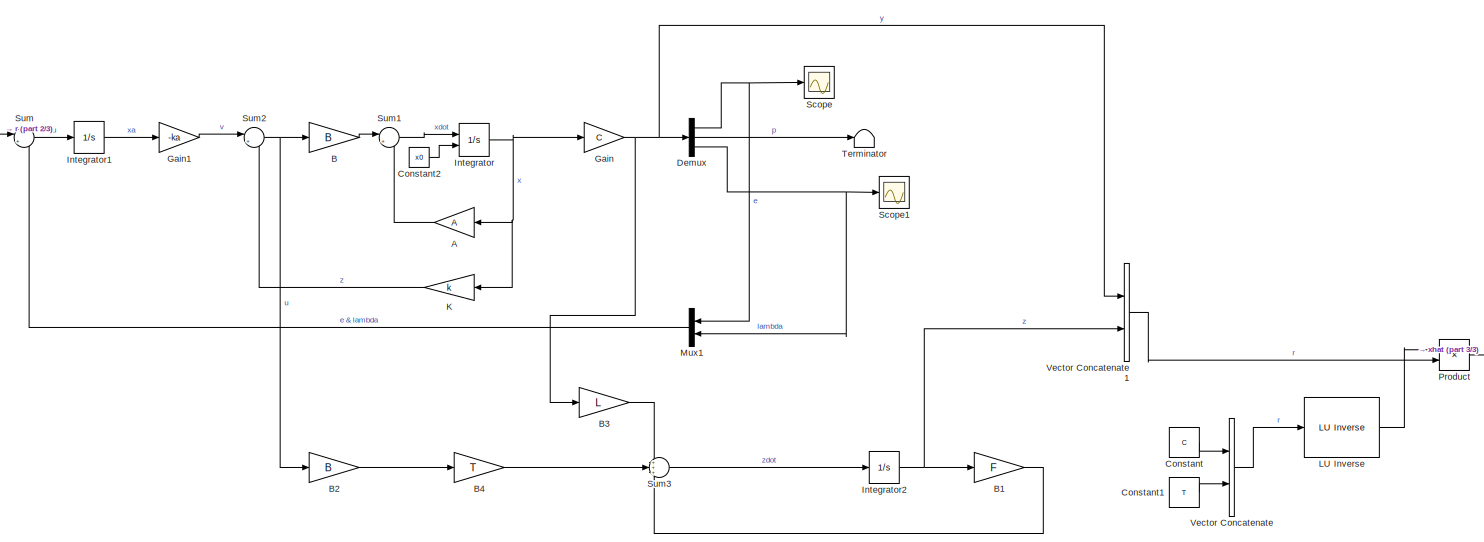
[diagram: root canvas - part 1/3, most of the canvas]
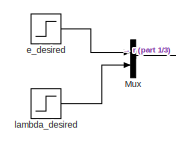
[diagram: root canvas - part 2/3, top left region]
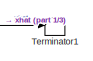
[diagram: root canvas - part 3/3, middle right region]
MODEL slx_38a09ede93b9
KIND model
CONFIG AbsTol = auto
CONFIG EnableMultiTasking = off
CONFIG FixedStep = auto
CONFIG MaxStep = auto
CONFIG MinStep = auto
CONFIG RelTol = 1e-3
CONFIG SampleTimeConstraint = Unconstrained
CONFIG SolverName = VariableStepAuto
CONFIG StartTime = 0.0
CONFIG StopTime = 10.0
BLOCK [Reference]  LU Inverse  REF=dspinverses/ LU Inverse
  Ports = [1, 1]
  SourceBlock = dspinverses/ LU Inverse
  SourceProductBaseCode = DS
  SourceType = LU Inverse
BLOCK [Gain] A
  Gain = A
  Multiplication = Matrix(K*u)
  NameLocation = top
BLOCK [Gain] B
  Gain = B
  Multiplication = Matrix(K*u)
BLOCK [Gain] B1
  Gain = F
  Multiplication = Matrix(K*u)
BLOCK [Gain] B2
  Gain = B
  Multiplication = Matrix(K*u)
BLOCK [Gain] B3
  Gain = L
  Multiplication = Matrix(K*u)
BLOCK [Gain] B4
  Gain = T
  Multiplication = Matrix(K*u)
BLOCK [Constant] Constant
  Value = C
BLOCK [Constant] Constant1
  Value = T
BLOCK [Constant] Constant2
  Value = x0
BLOCK [Demux] Demux
  Outputs = 3
  Ports = [1, 3]
BLOCK [Gain] Gain
  Gain = C
  Multiplication = Matrix(K*u)
BLOCK [Gain] Gain1
  Gain = -ka
  Multiplication = Matrix(K*u)
BLOCK [Integrator] Integrator
  InitialConditionSource = external
  Ports = [2, 1]
BLOCK [Integrator] Integrator1
  Ports = [1, 1]
BLOCK [Integrator] Integrator2
  Ports = [1, 1]
BLOCK [Gain] K
  Gain = k
  Multiplication = Matrix(K*u)
  NameLocation = top
BLOCK [Mux] Mux
  DisplayOption = bar
  Inputs = 2
  Ports = [2, 1]
BLOCK [Mux] Mux1
  DisplayOption = bar
  Inputs = 2
  NameLocation = top
  Ports = [2, 1]
BLOCK [Product] Product
  Multiplication = Matrix(*)
  Ports = [2, 1]
BLOCK [Scope] Scope
  Floating = off
  NumInputPorts = 1
  Ports = [1]
  ScopeSpecificationString = Simulink.scopes.TimeScopeBlockCfg('CurrentConfiguration', extmgr.ConfigurationSet(extmgr.Configuration('Core','General UI',true),extmgr.Configuration('Core','Source UI',true),extmgr.Configuration('Sources','WiredSimulink',true,'DataLoggingVariableName','ScopeData1'),extmgr.Configuration('Visuals','Time Domain',true),extmgr.Configuration('Tools','Plot Navigation',true),extmgr.Configuration('Tools',...<+40ch>
BLOCK [Scope] Scope1
  Floating = off
  NumInputPorts = 1
  Ports = [1]
  ScopeSpecificationString = Simulink.scopes.TimeScopeBlockCfg('CurrentConfiguration', extmgr.ConfigurationSet(extmgr.Configuration('Core','General UI',true),extmgr.Configuration('Core','Source UI',true),extmgr.Configuration('Sources','WiredSimulink',true),extmgr.Configuration('Visuals','Time Domain',true),extmgr.Configuration('Tools','Plot Navigation',true),extmgr.Configuration('Tools','Measurements',true)),'Version','2021a'...<+1ch>
BLOCK [Sum] Sum
  Inputs = |+-
  Ports = [2, 1]
BLOCK [Sum] Sum1
  Inputs = |++
  Ports = [2, 1]
BLOCK [Sum] Sum2
  Inputs = |+-
  Ports = [2, 1]
BLOCK [Sum] Sum3
  Inputs = +++
  Ports = [3, 1]
BLOCK [Terminator] Terminator
BLOCK [Terminator] Terminator1
BLOCK [Concatenate] Vector Concatenate
  Mode = Multidimensional array
  Ports = [2, 1]
BLOCK [Concatenate] Vector Concatenate1
  Mode = Multidimensional array
  Ports = [2, 1]
BLOCK [Step] e_desired
  After = 0.03
  SampleTime = 0
  Time = 0
BLOCK [Step] lambda_desired
  After = 0.05
  SampleTime = 0
  Time = 0
LINE  LU Inverse:1 -> Product:1
LINE A:1 -> Sum1:2
LINE B1:1 -> Sum3:3
LINE B2:1 -> B4:1
LINE B3:1 -> Sum3:1
LINE B4:1 -> Sum3:2
LINE B:1 -> Sum1:1
LINE Constant1:1 -> Vector Concatenate:2
LINE Constant2:1 -> Integrator:2
LINE Constant:1 -> Vector Concatenate:1
NET Demux:1 -> Mux1:1, Scope:1
LINE Demux:2 -> Terminator:1
NET Demux:3 -> Mux1:2, Scope1:1
LINE Gain1:1 -> Sum2:1
NET Gain:1 -> B3:1, Demux:1, Vector Concatenate1:1
LINE Integrator1:1 -> Gain1:1
NET Integrator2:1 -> B1:1, Vector Concatenate1:2
NET Integrator:1 -> A:1, Gain:1, K:1
LINE K:1 -> Sum2:2
LINE Mux1:1 -> Sum:2
LINE Mux:1 -> Sum:1
LINE Product:1 -> Terminator1:1
LINE Sum1:1 -> Integrator:1
NET Sum2:1 -> B2:1, B:1
LINE Sum3:1 -> Integrator2:1
LINE Sum:1 -> Integrator1:1
LINE Vector Concatenate1:1 -> Product:2
LINE Vector Concatenate:1 ->  LU Inverse:1
LINE e_desired:1 -> Mux:1
LINE lambda_desired:1 -> Mux:2
note: NET lines group one-source signal fan-out (src -> all destinations, sorted); 1:1 wires keep LINE
